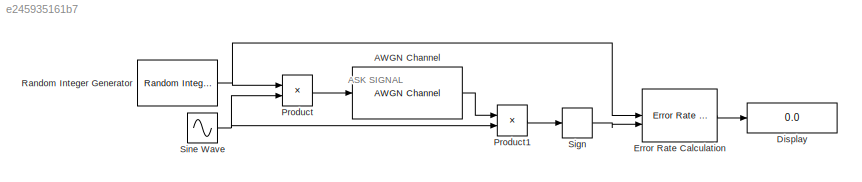
MODEL slx_e245935161b7
KIND model
CONFIG AbsTol = auto
CONFIG EnableMultiTasking = off
CONFIG FixedStep = auto
CONFIG MaxStep = auto
CONFIG MinStep = auto
CONFIG RelTol = 1e-3
CONFIG SampleTimeConstraint = Unconstrained
CONFIG SolverName = VariableStepAuto
CONFIG StartTime = 0.0
CONFIG StopTime = 10.0
BLOCK [Reference] AWGN Channel  REF=commchan3/AWGN
Channel
  SourceBlock = commchan3/AWGN\nChannel
  SourceType = AWGN Channel
BLOCK [Display] Display
  Decimation = 1
BLOCK [Reference] Error Rate Calculation  REF=commsink2/Error Rate
Calculation
  LibrarySourceBlock = commhdlsink/Error Rate\nCalculation
  SourceBlock = commsink2/Error Rate\nCalculation
  SourceType = Error Rate Calculation
BLOCK [Product] Product
BLOCK [Product] Product1
BLOCK [Reference] Random Integer Generator  REF=commrandsrc3/Random Integer
Generator
  SourceBlock = commrandsrc3/Random Integer\nGenerator
  SourceType = Random Integer Generator
BLOCK [Signum] Sign
BLOCK [Sin] Sine Wave
  Frequency = 2*pi*10
  SampleTime = 1
ANNOTATION (root): ASK SIGNAL
LINE AWGN Channel:1 -> Product1:1
LINE Error Rate Calculation:1 -> Display:1
LINE Product1:1 -> Sign:1
LINE Product:1 -> AWGN Channel:1
NET Random Integer Generator:1 -> Error Rate Calculation:1, Product:1
LINE Sign:1 -> Error Rate Calculation:2
NET Sine Wave:1 -> Product1:2, Product:2
note: NET lines group one-source signal fan-out (src -> all destinations, sorted); 1:1 wires keep LINE
